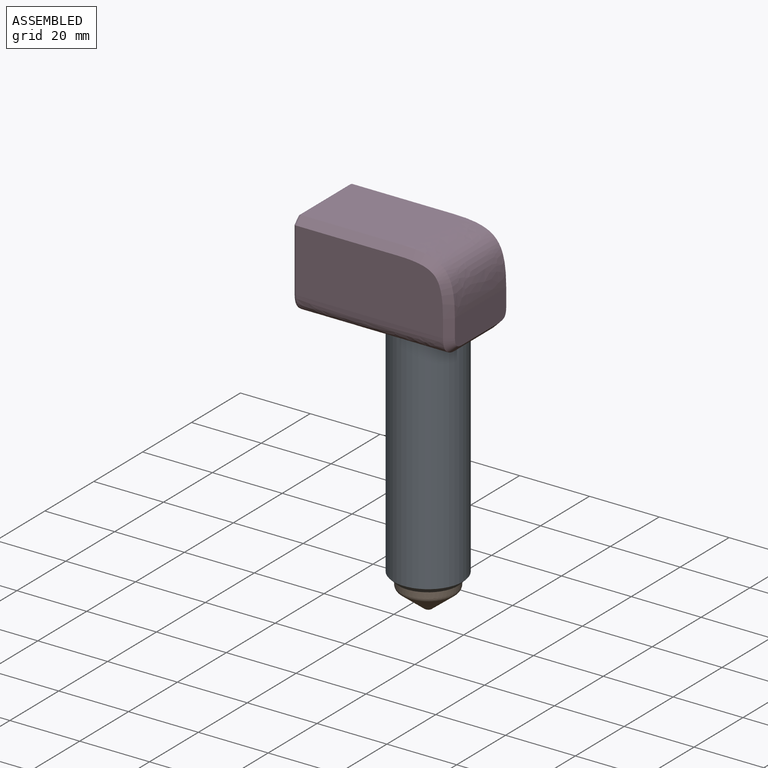
[diagram: assembled view]
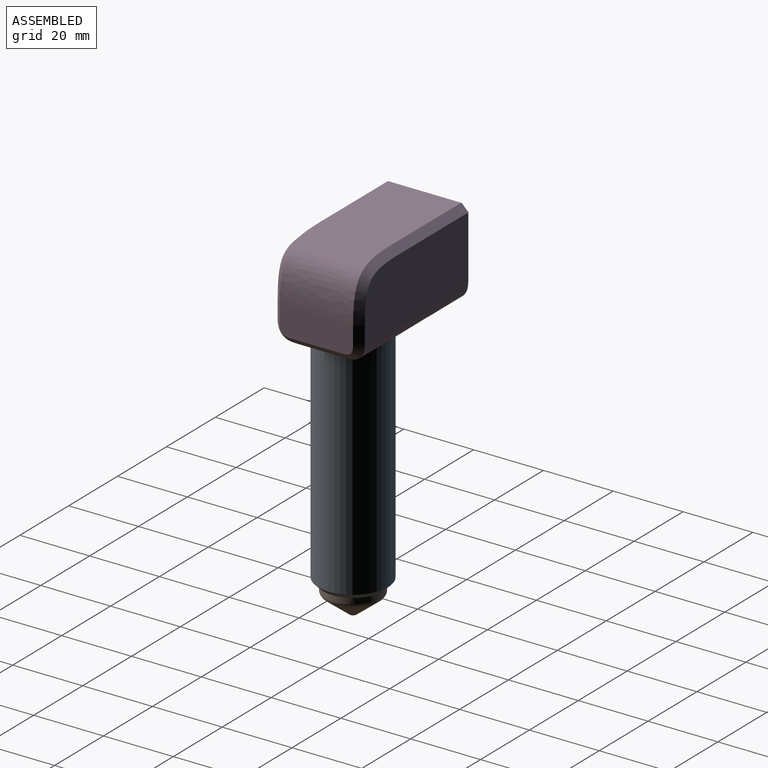
[diagram: assembled view, second angle]
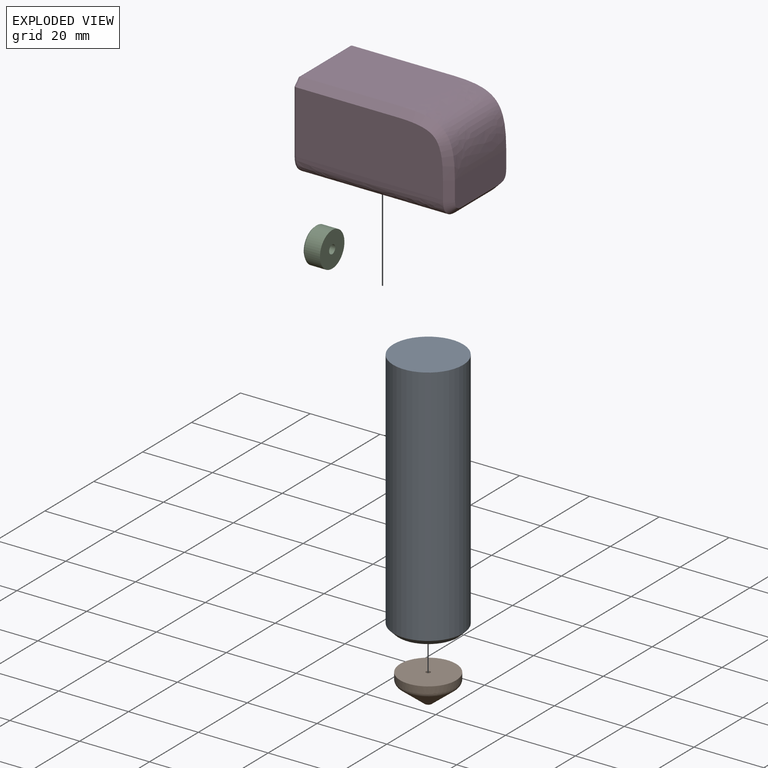
[diagram: exploded view]
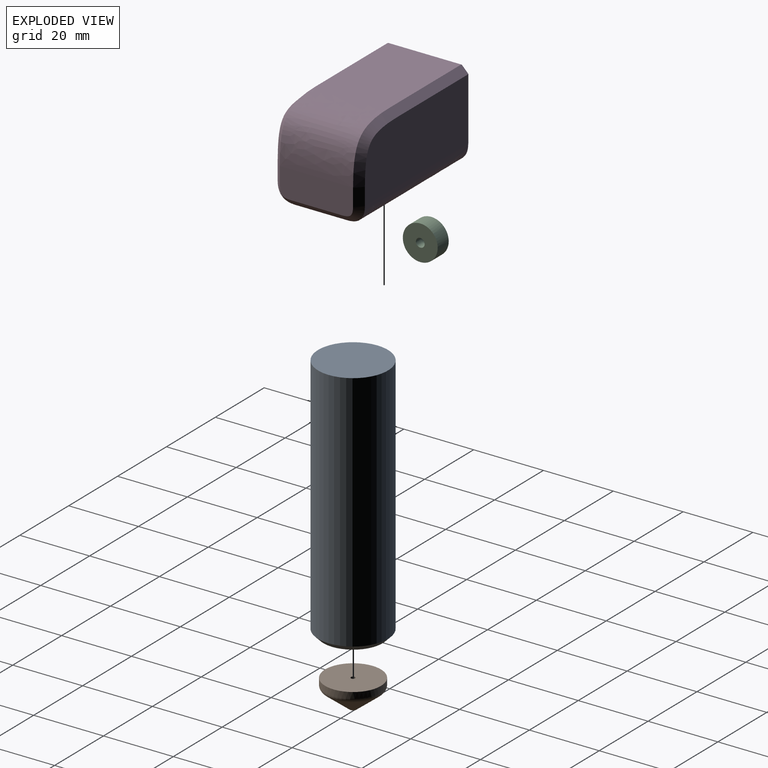
[diagram: exploded view, second angle]
ASSEMBLY  parts=4 mates=3
PART A: 4 faces, bbox 20x20x71 mm
  f0: cylinder r=10mm len=69.5mm, axis (0,0,-1), area 4366.8mm2, adj f2,f3
  f1: plane 17x17mm, normal (0,0,-1), area 227mm2, adj f2
  f2: cone r=8.5mm half-angle=45deg, axis (0,0,1), area 123.3mm2, adj f0,f1
  f3: plane 20x20mm, normal (0,0,1), area 314.2mm2, adj f0
PART B: 6 faces, bbox 17.3x17.3x8 mm
  f0: cone r=8mm half-angle=51.8deg, axis (0,0,1), area 216.4mm2, adj f1,f5
  f1: plane 2x2mm, normal (0,0,-1), area 1.9mm2, adj f0,f4
  f2: plane 16x16mm, normal (0,0,1), area 199.8mm2, adj f3,f4
  f3: cylinder r=8mm len=16mm, axis (0,0,-1), area 89mm2, adj f2,f5
  f4: cylinder r=0.62mm len=8mm, axis (0,0,-1), area 31.4mm2, adj f1,f2
  f5: torus R=6.5mm, axis (0,0,1), area 66.5mm2, adj f0,f3
PART C: 6 faces, bbox 5x10x10 mm
  f0: cylinder r=5mm len=10mm, axis (1,0,0), area 141.4mm2, adj f2,f5
  f1: plane 9x9mm, normal (-1,0,0), area 39.9mm2, adj f4,f5
  f2: plane 10x10mm, normal (1,0,0), area 73.6mm2, adj f0,f3
  f3: cylinder r=1.25mm len=3.5mm, axis (-1,0,0), area 27.5mm2, adj f2,f4
  f4: cone r=1.25mm half-angle=45deg, axis (-1,0,0), area 26.7mm2, adj f1,f3
  f5: cone r=4.5mm half-angle=45deg, axis (1,0,0), area 21.1mm2, adj f0,f1
PART D: 36 faces, bbox 50x28x25.5 mm
  f0: plane 15x5.65mm, normal (0,0,-1), area 52.2mm2, adj f8,f9,f14,f34
  f1: plane 21.39x8.39mm, normal (1,0,0), area 165.5mm2, adj f7,f12,f13,f14,f15,f16
  f2: plane 29x21mm, normal (0,0,1), area 609mm2, adj f7,f10,f18,f24
  f3: plane 23x23mm, normal (-1,0,0), area 427mm2, adj f19,f20,f21,f22,f23,f24,f25,f26
  f4: plane 21.65x15mm, normal (0,0,-1), area 292.2mm2, adj f8,f9,f21,f31
  f5: plane 42.53x18.53mm, normal (0,-1,0), area 738mm2, adj f9,f10,f11,f12,f20
  f6: plane 42.53x18.53mm, normal (0,1,0), area 738mm2, adj f8,f16,f17,f18,f25
  f7: bspline ~27.5x15mm, area 532.3mm2, adj f1,f2,f11,f17
  f8: bspline ~49.5x5mm, area 306.9mm2, adj f0,f4,f6,f15,f23,f32
  f9: bspline ~49.5x5mm, area 306.9mm2, adj f0,f4,f5,f13,f19,f33
  f10: plane 29x2mm, normal (0,-0.71,0.71), area 82mm2, adj f2,f5,f11,f22
  f11: bspline ~15x15mm, area 67.2mm2, adj f5,f7,f10,f12
  f12: plane 5x2mm, normal (0.71,-0.71,0), area 14.1mm2, adj f1,f5,f11,f13
  f13: bspline ~5x5mm, area 18.5mm2, adj f1,f9,f12,f14
  f14: plane 15x2mm, normal (0.71,0,-0.71), area 42.4mm2, adj f0,f1,f13,f15
  f15: bspline ~5x5mm, area 18.5mm2, adj f1,f8,f14,f16
  f16: plane 5x2mm, normal (0.71,0.71,0), area 14.1mm2, adj f1,f6,f15,f17
  f17: bspline ~15x15mm, area 67.2mm2, adj f6,f7,f16,f18
  f18: plane 29x2mm, normal (0,0.71,0.71), area 82mm2, adj f2,f6,f17,f26
  f19: bspline ~6.69x6.69mm, area 11.9mm2, adj f3,f9,f20,f21
  f20: cylinder r=1mm len=18mm, axis (0,0,1), area 27.9mm2, adj f3,f5,f19,f22
  f21: cylinder r=1mm len=15mm, axis (0,1,0), area 23.6mm2, adj f3,f4,f19,f23
  f22: cylinder r=1mm len=2.71mm, axis (0,0.71,0.71), area 3.8mm2, adj f3,f10,f20,f24
  f23: bspline ~6.69x6.69mm, area 11.9mm2, adj f3,f8,f21,f25
  f24: cylinder r=1mm len=21mm, axis (0,-1,0), area 32.3mm2, adj f2,f3,f22,f26
  f25: cylinder r=1mm len=18mm, axis (0,0,-1), area 27.9mm2, adj f3,f6,f23,f26
  f26: cylinder r=1mm len=2.71mm, axis (0,-0.71,0.71), area 3.8mm2, adj f3,f18,f24,f25
  f27: cylinder r=10mm len=20mm, axis (0,0,-1), area 345.6mm2, adj f28,f31,f32,f33,f34
  f28: plane 20x20mm, normal (0,0,-1), area 314.2mm2, adj f27
  f29: cylinder r=5mm len=10mm, axis (1,0,0), area 62.8mm2, adj f30,f35
  f30: plane 10x10mm, normal (-1,0,0), area 78.5mm2, adj f29
  f31: torus R=10.5mm, axis (0,0,-1), area 12.7mm2, adj f4,f27,f32,f33
  f32: bspline ~17.35x5.14mm, area 15.2mm2, adj f8,f27,f31,f34
  f33: bspline ~17.35x5.14mm, area 15.2mm2, adj f9,f27,f31,f34
  f34: torus R=10.5mm, axis (0,0,-1), area 12.7mm2, adj f0,f27,f32,f33
  f35: torus R=5.5mm, axis (-1,0,0), area 25.6mm2, adj f3,f29
PLACE A rot(axis=(1,0,0),0deg) t=(-63.09,-58.66,306.5)mm fixed
PLACE B rot(axis=(1,0,0),0deg) t=(-63.09,-58.66,306.5)mm
PLACE C rot(axis=(1,0,0),0deg) t=(-63.09,-58.66,306.5)mm
PLACE D rot(axis=(1,0,0),0deg) t=(-63.09,-58.66,306.5)mm
MATE fastened D.f27 <-> A.f0  axis (0,0,-1) through (-63.09,-58.66,385.5)mm
MATE fastened C.f3 <-> D.f35  axis (1,0,0) through (-90.59,-58.66,392)mm
MATE fastened B.f0 <-> A.f2  axis (0,0,1) through (-63.09,-58.66,314.5)mm
